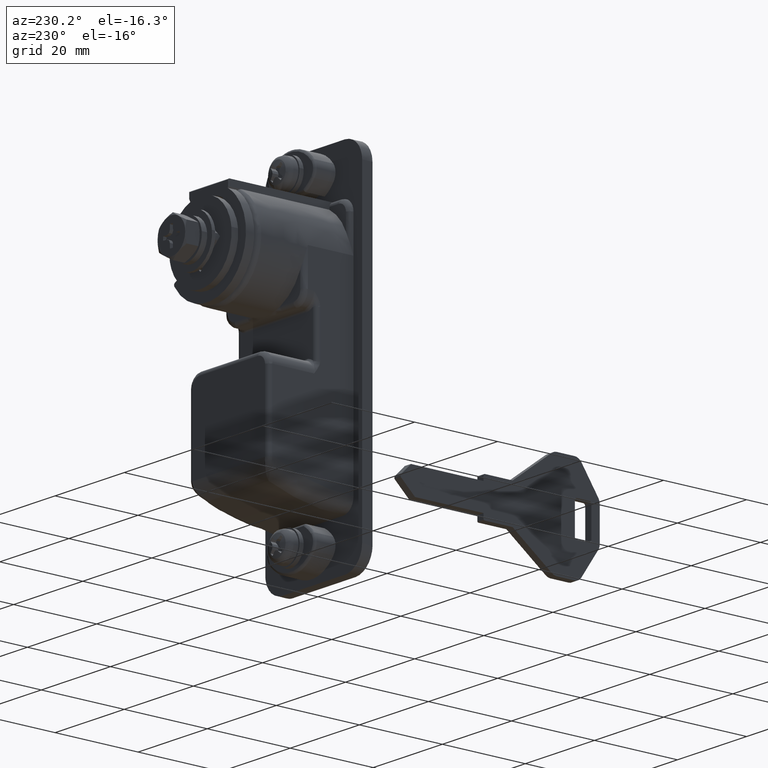
[diagram: clean part render]
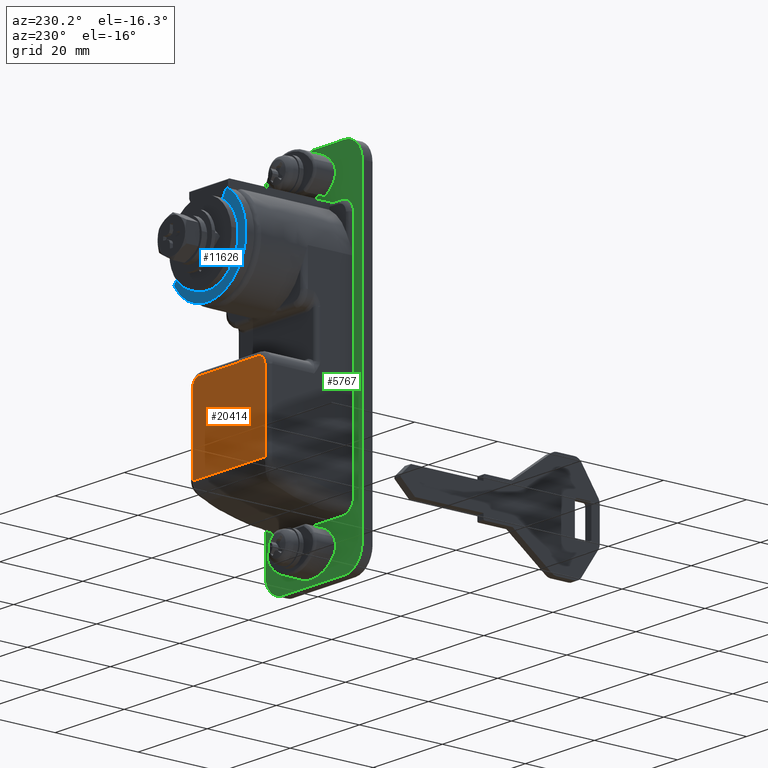
[diagram: same view with three faces highlighted in distinct colors, each labeled with its STEP entity id]
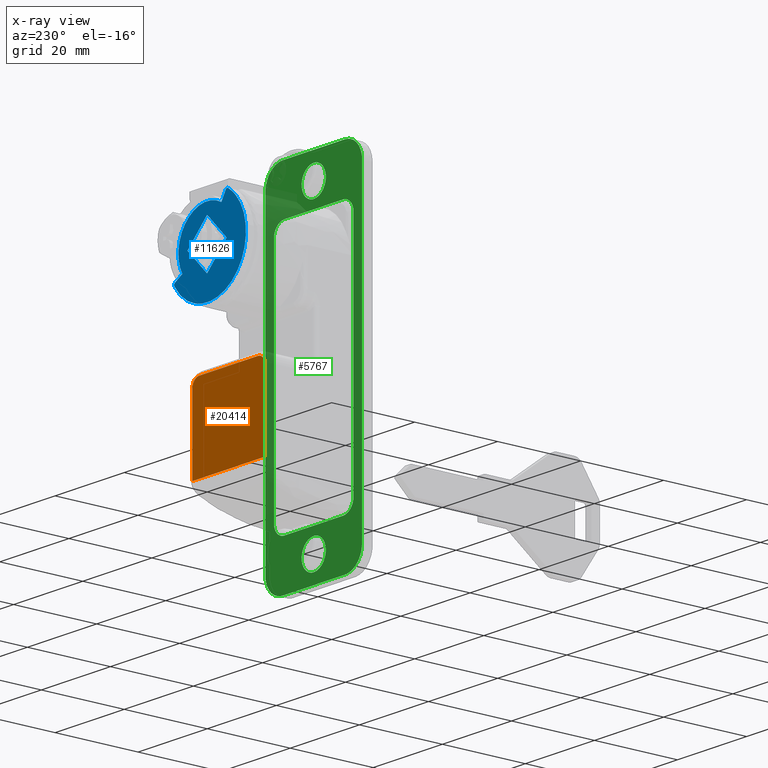
[diagram: x-ray of the same camera — body ghosted, the three highlighted faces saturated]
A machine part, auxiliary view with three faces highlighted in distinct colors.
The next image is the same camera in x-ray (body ghosted, the three faces saturated) — at least one of them is partly hidden behind the body in this view.
Their STEP definitions:

[orange] entity #20414 — the highlighted face is a freeform B-spline surface patch.
#18123=CARTESIAN_POINT('',(21.500000000000000,10.492613913856280,-42.402830094228413));
#18124=VERTEX_POINT('',#18123);
#18149=CARTESIAN_POINT('',(21.500000000000000,10.500000000000000,-42.213741838410847));
#18150=VERTEX_POINT('',#18149);
#18164=CARTESIAN_POINT('',(21.500000000000000,10.492613913856280,-42.402830094228413));
#18165=CARTESIAN_POINT('',(21.500000000000000,10.497541484559401,-42.339896983589639));
#18166=CARTESIAN_POINT('',(21.500000000000000,10.500000000000000,-42.276867427749757));
#18167=CARTESIAN_POINT('',(21.500000000000000,10.500000000000000,-42.213741838410847));
#18168=QUASI_UNIFORM_CURVE('',3,(#18164,#18165,#18166,#18167),.UNSPECIFIED.,.F.,.U.);
#18169=EDGE_CURVE('',#18124,#18150,#18168,.T.);
#18310=CARTESIAN_POINT('',(21.500000000000000,-10.492613913856280,-42.402830094228413));
#18311=VERTEX_POINT('',#18310);
#18351=CARTESIAN_POINT('',(21.500000000000000,-10.492613913856280,-42.402830094228413));
#18352=CARTESIAN_POINT('',(21.500000000000000,10.492613913856280,-42.402830094228413));
#18353=QUASI_UNIFORM_CURVE('',1,(#18351,#18352),.UNSPECIFIED.,.F.,.U.);
#18354=EDGE_CURVE('',#18311,#18124,#18353,.T.);
#18485=CARTESIAN_POINT('',(21.500000000000000,-10.500000000000000,-42.213741838410847));
#18486=VERTEX_POINT('',#18485);
#18508=CARTESIAN_POINT('',(21.500000000000000,-10.500000000000000,-42.213741838410847));
#18509=CARTESIAN_POINT('',(21.500000000000000,-10.500000000000000,-42.276867427749757));
#18510=CARTESIAN_POINT('',(21.500000000000000,-10.497541484559401,-42.339896983589639));
#18511=CARTESIAN_POINT('',(21.500000000000000,-10.492613913856280,-42.402830094228413));
#18512=QUASI_UNIFORM_CURVE('',3,(#18508,#18509,#18510,#18511),.UNSPECIFIED.,.F.,.U.);
#18513=EDGE_CURVE('',#18486,#18311,#18512,.T.);
#18540=CARTESIAN_POINT('',(21.500000000000000,-10.500000000000000,-24.500000000000000));
#18541=VERTEX_POINT('',#18540);
#18542=CARTESIAN_POINT('',(21.500000000000000,-10.500000000000000,-24.500000000000000));
#18543=CARTESIAN_POINT('',(21.500000000000000,-10.500000000000000,-42.213741838410847));
#18544=QUASI_UNIFORM_CURVE('',1,(#18542,#18543),.UNSPECIFIED.,.F.,.U.);
#18545=EDGE_CURVE('',#18541,#18486,#18544,.T.);
#18580=CARTESIAN_POINT('',(21.500000000000000,-8.500000000000000,-22.500000000000000));
#18581=VERTEX_POINT('',#18580);
#18611=CARTESIAN_POINT('',(21.500000000000000,-8.500000000000000,-22.500000000000000));
#18612=CARTESIAN_POINT('',(21.499999999999996,-10.500000000000002,-22.500000000000000));
#18613=CARTESIAN_POINT('',(21.500000000000000,-10.500000000000000,-24.500000000000000));
#18621=(BOUNDED_CURVE()B_SPLINE_CURVE(2,(#18611,#18612,#18613),.UNSPECIFIED.,.F.,.U.)CURVE()GEOMETRIC_REPRESENTATION_ITEM()QUASI_UNIFORM_CURVE()RATIONAL_B_SPLINE_CURVE((1.0,0.707106781186548,1.0))REPRESENTATION_ITEM(''));
#18622=EDGE_CURVE('',#18581,#18541,#18621,.T.);
#18641=CARTESIAN_POINT('',(21.500000000000000,8.500000000000000,-22.500000000000000));
#18642=VERTEX_POINT('',#18641);
#18664=CARTESIAN_POINT('',(21.500000000000000,8.500000000000000,-22.500000000000000));
#18665=CARTESIAN_POINT('',(21.500000000000000,-8.500000000000000,-22.500000000000000));
#18666=QUASI_UNIFORM_CURVE('',1,(#18664,#18665),.UNSPECIFIED.,.F.,.U.);
#18667=EDGE_CURVE('',#18642,#18581,#18666,.T.);
#18689=CARTESIAN_POINT('',(21.500000000000000,10.500000000000000,-24.500000000000000));
#18690=VERTEX_POINT('',#18689);
#18720=CARTESIAN_POINT('',(21.500000000000000,10.500000000000000,-24.500000000000000));
#18721=CARTESIAN_POINT('',(21.499999999999996,10.500000000000002,-22.500000000000000));
#18722=CARTESIAN_POINT('',(21.500000000000000,8.500000000000000,-22.500000000000000));
#18730=(BOUNDED_CURVE()B_SPLINE_CURVE(2,(#18720,#18721,#18722),.UNSPECIFIED.,.F.,.U.)CURVE()GEOMETRIC_REPRESENTATION_ITEM()QUASI_UNIFORM_CURVE()RATIONAL_B_SPLINE_CURVE((1.0,0.707106781186548,1.0))REPRESENTATION_ITEM(''));
#18731=EDGE_CURVE('',#18690,#18642,#18730,.T.);
#18750=CARTESIAN_POINT('',(21.500000000000000,10.500000000000000,-42.213741838410847));
#18751=CARTESIAN_POINT('',(21.500000000000000,10.500000000000000,-24.500000000000000));
#18752=QUASI_UNIFORM_CURVE('',1,(#18750,#18751),.UNSPECIFIED.,.F.,.U.);
#18753=EDGE_CURVE('',#18150,#18690,#18752,.T.);
#20399=CARTESIAN_POINT('',(21.500000000000000,-11.548949959297930,-43.396974550524277));
#20400=CARTESIAN_POINT('',(21.500000000000000,-11.548949959297930,-21.505853230416950));
#20401=CARTESIAN_POINT('',(21.500000000000000,11.548950522561819,-43.396974550524277));
#20402=CARTESIAN_POINT('',(21.500000000000000,11.548950522561819,-21.505853230416950));
#20403=B_SPLINE_SURFACE_WITH_KNOTS('',1,1,((#20399,#20401),(#20400,#20402)),.UNSPECIFIED.,.F.,.F.,.U.,(2,2),(2,2),(0.0,21.891121320107331),(0.0,23.097900481859750),.UNSPECIFIED.);
#20404=ORIENTED_EDGE('',*,*,#18354,.T.);
#20405=ORIENTED_EDGE('',*,*,#18169,.T.);
#20406=ORIENTED_EDGE('',*,*,#18753,.T.);
#20407=ORIENTED_EDGE('',*,*,#18731,.T.);
#20408=ORIENTED_EDGE('',*,*,#18667,.T.);
#20409=ORIENTED_EDGE('',*,*,#18622,.T.);
#20410=ORIENTED_EDGE('',*,*,#18545,.T.);
#20411=ORIENTED_EDGE('',*,*,#18513,.T.);
#20412=EDGE_LOOP('',(#20404,#20405,#20406,#20407,#20408,#20409,#20410,#20411));
#20413=FACE_OUTER_BOUND('',#20412,.T.);
#20414=ADVANCED_FACE('',(#20413),#20403,.F.);

[blue] entity #11626 — the highlighted face is a freeform B-spline surface patch.
#11505=CARTESIAN_POINT('',(26.699999999999999,-10.587854835155801,10.587854749242540));
#11506=CARTESIAN_POINT('',(26.699999999999999,12.275278806585010,10.587854749242540));
#11507=CARTESIAN_POINT('',(26.699999999999999,-10.587854835155801,-12.275278827891940));
#11508=CARTESIAN_POINT('',(26.699999999999999,12.275278806585010,-12.275278827891940));
#11509=B_SPLINE_SURFACE_WITH_KNOTS('',1,1,((#11505,#11507),(#11506,#11508)),.UNSPECIFIED.,.F.,.F.,.U.,(2,2),(2,2),(0.0,22.863133641740799),(0.0,22.863133577134480),.UNSPECIFIED.);
#11510=CARTESIAN_POINT('',(26.699999999999999,-9.470613810876641,-6.072065056077110));
#11511=VERTEX_POINT('',#11510);
#11512=CARTESIAN_POINT('',(26.699999999999999,6.072065158286350,9.470613745345391));
#11513=VERTEX_POINT('',#11512);
#11514=CARTESIAN_POINT('',(26.699999999999999,-9.470613810876634,-6.072065056077113));
#11515=CARTESIAN_POINT('',(26.700000000000003,-5.357758705824767,-12.486894607525198));
#11516=CARTESIAN_POINT('',(26.699999999999999,2.125130863780671,-11.047457572301729));
#11517=CARTESIAN_POINT('',(26.700000000000003,9.608020433386111,-9.608020537078268));
#11518=CARTESIAN_POINT('',(26.699999999999999,11.047457549366790,-2.125130983007596));
#11519=CARTESIAN_POINT('',(26.700000000000003,12.486894665347464,5.357758571063070));
#11520=CARTESIAN_POINT('',(26.699999999999999,6.072065158286353,9.470613745345384));
#11528=(BOUNDED_CURVE()B_SPLINE_CURVE(2,(#11514,#11515,#11516,#11517,#11518,#11519,#11520),.UNSPECIFIED.,.F.,.U.)B_SPLINE_CURVE_WITH_KNOTS((3,2,2,3),(0.0,0.333333333333333,0.666666666666667,1.0),.UNSPECIFIED.)CURVE()GEOMETRIC_REPRESENTATION_ITEM()RATIONAL_B_SPLINE_CURVE((1.0,0.827949034931353,1.0,0.827949034931353,1.0,0.827949034931353,1.0))REPRESENTATION_ITEM(''));
#11529=EDGE_CURVE('',#11511,#11513,#11528,.T.);
#11530=ORIENTED_EDGE('',*,*,#11529,.T.);
#11531=CARTESIAN_POINT('',(26.699999999999999,5.369182919276700,9.299697623006239));
#11532=VERTEX_POINT('',#11531);
#11533=CARTESIAN_POINT('',(26.699999999999999,6.072065158286348,9.470613745345389));
#11534=CARTESIAN_POINT('',(26.700000000000006,5.891951767942756,9.586093087176177));
#11535=CARTESIAN_POINT('',(26.699999999999999,5.684055851679326,9.535540146888549));
#11536=CARTESIAN_POINT('',(26.700000000000006,5.476159935415896,9.484987206600920));
#11537=CARTESIAN_POINT('',(26.699999999999999,5.369182919276701,9.299697623006237));
#11545=(BOUNDED_CURVE()B_SPLINE_CURVE(2,(#11533,#11534,#11535,#11536,#11537),.UNSPECIFIED.,.F.,.U.)B_SPLINE_CURVE_WITH_KNOTS((3,2,3),(0.0,0.500000000000000,1.0),.UNSPECIFIED.)CURVE()GEOMETRIC_REPRESENTATION_ITEM()RATIONAL_B_SPLINE_CURVE((1.0,0.919365727210338,1.0,0.919365727210338,1.0))REPRESENTATION_ITEM(''));
#11546=EDGE_CURVE('',#11513,#11532,#11545,.T.);
#11547=ORIENTED_EDGE('',*,*,#11546,.T.);
#11548=CARTESIAN_POINT('',(26.699999999999999,4.149999959585565,7.188011290000210));
#11549=VERTEX_POINT('',#11548);
#11550=CARTESIAN_POINT('',(26.699999999999999,5.369182919276700,9.299697623006239));
#11551=CARTESIAN_POINT('',(26.699999999999999,4.149999959585565,7.188011290000210));
#11552=QUASI_UNIFORM_CURVE('',1,(#11550,#11551),.UNSPECIFIED.,.F.,.U.);
#11553=EDGE_CURVE('',#11532,#11549,#11552,.T.);
#11554=ORIENTED_EDGE('',*,*,#11553,.T.);
#11555=CARTESIAN_POINT('',(26.699999999999999,-7.188011266666870,-4.150000000000100));
#11556=VERTEX_POINT('',#11555);
#11557=CARTESIAN_POINT('',(26.699999999999999,4.149999959585568,7.188011290000206));
#11558=CARTESIAN_POINT('',(26.700000000000003,-1.365554934235421,10.372418167364529));
#11559=CARTESIAN_POINT('',(26.699999999999999,-5.868986554638886,5.868986521640566));
#11560=CARTESIAN_POINT('',(26.700000000000003,-10.372418175042347,1.365554875916600));
#11561=CARTESIAN_POINT('',(26.699999999999999,-7.188011266666871,-4.150000000000091));
#11569=(BOUNDED_CURVE()B_SPLINE_CURVE(2,(#11557,#11558,#11559,#11560,#11561),.UNSPECIFIED.,.F.,.U.)B_SPLINE_CURVE_WITH_KNOTS((3,2,3),(0.0,0.500000000000000,1.0),.UNSPECIFIED.)CURVE()GEOMETRIC_REPRESENTATION_ITEM()RATIONAL_B_SPLINE_CURVE((1.0,0.793353348761133,1.0,0.793353348761133,1.0))REPRESENTATION_ITEM(''));
#11570=EDGE_CURVE('',#11549,#11556,#11569,.T.);
#11571=ORIENTED_EDGE('',*,*,#11570,.T.);
#11572=CARTESIAN_POINT('',(26.699999999999999,-9.299697656757450,-5.369182804943411));
#11573=VERTEX_POINT('',#11572);
#11574=CARTESIAN_POINT('',(26.699999999999999,-7.188011266666870,-4.150000000000100));
#11575=CARTESIAN_POINT('',(26.699999999999999,-9.299697656757450,-5.369182804943411));
#11576=QUASI_UNIFORM_CURVE('',1,(#11574,#11575),.UNSPECIFIED.,.F.,.U.);
#11577=EDGE_CURVE('',#11556,#11573,#11576,.T.);
#11578=ORIENTED_EDGE('',*,*,#11577,.T.);
#11579=CARTESIAN_POINT('',(26.699999999999999,-9.299697656757452,-5.369182804943409));
#11580=CARTESIAN_POINT('',(26.699999999999996,-9.484987254640057,-5.476159812861540));
#11581=CARTESIAN_POINT('',(26.699999999999999,-9.535540204931808,-5.684055735196283));
#11582=CARTESIAN_POINT('',(26.699999999999996,-9.586093155223557,-5.891951657531028));
#11583=CARTESIAN_POINT('',(26.699999999999999,-9.470613810876637,-6.072065056077108));
#11591=(BOUNDED_CURVE()B_SPLINE_CURVE(2,(#11579,#11580,#11581,#11582,#11583),.UNSPECIFIED.,.F.,.U.)B_SPLINE_CURVE_WITH_KNOTS((3,2,3),(0.0,0.500000000000000,1.0),.UNSPECIFIED.)CURVE()GEOMETRIC_REPRESENTATION_ITEM()RATIONAL_B_SPLINE_CURVE((1.0,0.919365721715028,1.0,0.919365721715028,1.0))REPRESENTATION_ITEM(''));
#11592=EDGE_CURVE('',#11573,#11511,#11591,.T.);
#11593=ORIENTED_EDGE('',*,*,#11592,.T.);
#11594=EDGE_LOOP('',(#11530,#11547,#11554,#11571,#11578,#11593));
#11595=FACE_OUTER_BOUND('',#11594,.T.);
#11596=CARTESIAN_POINT('',(26.699999999999999,-4.440892E-016,-5.656854249492380));
#11597=VERTEX_POINT('',#11596);
#11598=CARTESIAN_POINT('',(26.699999999999999,-5.656854249492380,4.440892E-016));
#11599=VERTEX_POINT('',#11598);
#11600=CARTESIAN_POINT('',(26.699999999999999,-4.440892E-016,-5.656854249492380));
#11601=CARTESIAN_POINT('',(26.699999999999999,-5.656854249492380,4.440892E-016));
#11602=QUASI_UNIFORM_CURVE('',1,(#11600,#11601),.UNSPECIFIED.,.F.,.U.);
#11603=EDGE_CURVE('',#11597,#11599,#11602,.T.);
#11604=ORIENTED_EDGE('',*,*,#11603,.T.);
#11605=CARTESIAN_POINT('',(26.699999999999999,0.0,5.656854249492380));
#11606=VERTEX_POINT('',#11605);
#11607=CARTESIAN_POINT('',(26.699999999999999,-5.656854249492380,4.440892E-016));
#11608=CARTESIAN_POINT('',(26.699999999999999,0.0,5.656854249492380));
#11609=QUASI_UNIFORM_CURVE('',1,(#11607,#11608),.UNSPECIFIED.,.F.,.U.);
#11610=EDGE_CURVE('',#11599,#11606,#11609,.T.);
#11611=ORIENTED_EDGE('',*,*,#11610,.T.);
#11612=CARTESIAN_POINT('',(26.699999999999999,5.656854249492380,-4.440892E-016));
#11613=VERTEX_POINT('',#11612);
#11614=CARTESIAN_POINT('',(26.699999999999999,0.0,5.656854249492380));
#11615=CARTESIAN_POINT('',(26.699999999999999,5.656854249492380,-4.440892E-016));
#11616=QUASI_UNIFORM_CURVE('',1,(#11614,#11615),.UNSPECIFIED.,.F.,.U.);
#11617=EDGE_CURVE('',#11606,#11613,#11616,.T.);
#11618=ORIENTED_EDGE('',*,*,#11617,.T.);
#11619=CARTESIAN_POINT('',(26.699999999999999,5.656854249492380,-4.440892E-016));
#11620=CARTESIAN_POINT('',(26.699999999999999,-4.440892E-016,-5.656854249492380));
#11621=QUASI_UNIFORM_CURVE('',1,(#11619,#11620),.UNSPECIFIED.,.F.,.U.);
#11622=EDGE_CURVE('',#11613,#11597,#11621,.T.);
#11623=ORIENTED_EDGE('',*,*,#11622,.T.);
#11624=EDGE_LOOP('',(#11604,#11611,#11618,#11623));
#11625=FACE_BOUND('',#11624,.T.);
#11626=ADVANCED_FACE('',(#11595,#11625),#11509,.F.);

[green] entity #5767 — the highlighted face is a freeform B-spline surface patch.
#4732=CARTESIAN_POINT('',(1.000000000000222,3.489210668036402,16.725393164577142));
#4733=VERTEX_POINT('',#4732);
#4739=CARTESIAN_POINT('',(1.000000000000222,0.0,20.500000000000000));
#4740=VERTEX_POINT('',#4739);
#4741=CARTESIAN_POINT('',(1.000000000000222,3.489210668036402,16.725393164577135));
#4742=CARTESIAN_POINT('',(1.000000000000222,3.500000000000000,16.862484625096005));
#4743=CARTESIAN_POINT('',(1.000000000000222,3.500000000000000,17.0));
#4744=CARTESIAN_POINT('',(1.000000000000222,3.500000000000000,20.499999999999996));
#4745=CARTESIAN_POINT('',(1.000000000000222,0.0,20.500000000000000));
#4753=(BOUNDED_CURVE()B_SPLINE_CURVE(2,(#4741,#4742,#4743,#4744,#4745),.UNSPECIFIED.,.F.,.U.)B_SPLINE_CURVE_WITH_KNOTS((3,2,3),(0.736331300595880,0.750000000000000,1.0),.UNSPECIFIED.)CURVE()GEOMETRIC_REPRESENTATION_ITEM()RATIONAL_B_SPLINE_CURVE((0.969723356094835,0.983986122538135,1.0,0.707106781186547,1.0))REPRESENTATION_ITEM(''));
#4754=EDGE_CURVE('',#4733,#4740,#4753,.T.);
#4756=CARTESIAN_POINT('',(1.000000000000222,-3.489210668036402,17.274606835422869));
#4757=VERTEX_POINT('',#4756);
#4758=CARTESIAN_POINT('',(1.000000000000222,0.0,20.500000000000000));
#4759=CARTESIAN_POINT('',(1.000000000000222,-3.235366720105382,20.499999999999996));
#4760=CARTESIAN_POINT('',(1.000000000000222,-3.489210668036402,17.274606835422865));
#4768=(BOUNDED_CURVE()B_SPLINE_CURVE(2,(#4758,#4759,#4760),.UNSPECIFIED.,.F.,.U.)B_SPLINE_CURVE_WITH_KNOTS((3,3),(0.0,0.236331300595880),.UNSPECIFIED.)CURVE()GEOMETRIC_REPRESENTATION_ITEM()RATIONAL_B_SPLINE_CURVE((1.0,0.723120658648413,0.969723356094835))REPRESENTATION_ITEM(''));
#4769=EDGE_CURVE('',#4740,#4757,#4768,.T.);
#4815=CARTESIAN_POINT('',(1.000000000000222,0.0,13.500000000000000));
#4816=VERTEX_POINT('',#4815);
#4817=CARTESIAN_POINT('',(1.000000000000222,-3.489210668036402,17.274606835422865));
#4818=CARTESIAN_POINT('',(1.000000000000222,-3.500000000000001,17.137515374903998));
#4819=CARTESIAN_POINT('',(1.000000000000222,-3.500000000000000,17.0));
#4820=CARTESIAN_POINT('',(1.000000000000222,-3.500000000000000,13.500000000000002));
#4821=CARTESIAN_POINT('',(1.000000000000222,0.0,13.500000000000000));
#4829=(BOUNDED_CURVE()B_SPLINE_CURVE(2,(#4817,#4818,#4819,#4820,#4821),.UNSPECIFIED.,.F.,.U.)B_SPLINE_CURVE_WITH_KNOTS((3,2,3),(0.236331300595880,0.250000000000000,0.500000000000000),.UNSPECIFIED.)CURVE()GEOMETRIC_REPRESENTATION_ITEM()RATIONAL_B_SPLINE_CURVE((0.969723356094835,0.983986122538135,1.0,0.707106781186547,1.0))REPRESENTATION_ITEM(''));
#4830=EDGE_CURVE('',#4757,#4816,#4829,.T.);
#4832=CARTESIAN_POINT('',(1.000000000000222,0.0,13.500000000000000));
#4833=CARTESIAN_POINT('',(1.000000000000222,3.235366720105390,13.500000000000004));
#4834=CARTESIAN_POINT('',(1.000000000000222,3.489210668036402,16.725393164577138));
#4842=(BOUNDED_CURVE()B_SPLINE_CURVE(2,(#4832,#4833,#4834),.UNSPECIFIED.,.F.,.U.)B_SPLINE_CURVE_WITH_KNOTS((3,3),(0.500000000000000,0.736331300595880),.UNSPECIFIED.)CURVE()GEOMETRIC_REPRESENTATION_ITEM()RATIONAL_B_SPLINE_CURVE((1.0,0.723120658648412,0.969723356094835))REPRESENTATION_ITEM(''));
#4843=EDGE_CURVE('',#4816,#4733,#4842,.T.);
#4914=CARTESIAN_POINT('',(1.000000000000222,3.489210668036403,-55.274606835422858));
#4915=VERTEX_POINT('',#4914);
#4921=CARTESIAN_POINT('',(1.000000000000222,0.0,-51.500000000000000));
#4922=VERTEX_POINT('',#4921);
#4923=CARTESIAN_POINT('',(1.000000000000222,3.489210668036403,-55.274606835422858));
#4924=CARTESIAN_POINT('',(1.000000000000222,3.500000000000000,-55.137515374903991));
#4925=CARTESIAN_POINT('',(1.000000000000222,3.500000000000000,-55.0));
#4926=CARTESIAN_POINT('',(1.000000000000222,3.500000000000000,-51.500000000000000));
#4927=CARTESIAN_POINT('',(1.000000000000222,0.0,-51.500000000000000));
#4935=(BOUNDED_CURVE()B_SPLINE_CURVE(2,(#4923,#4924,#4925,#4926,#4927),.UNSPECIFIED.,.F.,.U.)B_SPLINE_CURVE_WITH_KNOTS((3,2,3),(0.736331300595880,0.750000000000000,1.0),.UNSPECIFIED.)CURVE()GEOMETRIC_REPRESENTATION_ITEM()RATIONAL_B_SPLINE_CURVE((0.969723356094835,0.983986122538135,1.0,0.707106781186547,1.0))REPRESENTATION_ITEM(''));
#4936=EDGE_CURVE('',#4915,#4922,#4935,.T.);
#4938=CARTESIAN_POINT('',(1.000000000000222,-3.489210668036402,-54.725393164577142));
#4939=VERTEX_POINT('',#4938);
#4940=CARTESIAN_POINT('',(1.000000000000222,0.0,-51.500000000000000));
#4941=CARTESIAN_POINT('',(1.000000000000222,-3.235366720105388,-51.500000000000000));
#4942=CARTESIAN_POINT('',(1.000000000000222,-3.489210668036402,-54.725393164577135));
#4950=(BOUNDED_CURVE()B_SPLINE_CURVE(2,(#4940,#4941,#4942),.UNSPECIFIED.,.F.,.U.)B_SPLINE_CURVE_WITH_KNOTS((3,3),(0.0,0.236331300595880),.UNSPECIFIED.)CURVE()GEOMETRIC_REPRESENTATION_ITEM()RATIONAL_B_SPLINE_CURVE((1.0,0.723120658648412,0.969723356094835))REPRESENTATION_ITEM(''));
#4951=EDGE_CURVE('',#4922,#4939,#4950,.T.);
#4997=CARTESIAN_POINT('',(1.000000000000222,0.0,-58.500000000000000));
#4998=VERTEX_POINT('',#4997);
#4999=CARTESIAN_POINT('',(1.000000000000222,-3.489210668036402,-54.725393164577142));
#5000=CARTESIAN_POINT('',(1.000000000000222,-3.500000000000000,-54.862484625096009));
#5001=CARTESIAN_POINT('',(1.000000000000222,-3.500000000000000,-55.0));
#5002=CARTESIAN_POINT('',(1.000000000000222,-3.500000000000000,-58.499999999999993));
#5003=CARTESIAN_POINT('',(1.000000000000222,0.0,-58.500000000000000));
#5011=(BOUNDED_CURVE()B_SPLINE_CURVE(2,(#4999,#5000,#5001,#5002,#5003),.UNSPECIFIED.,.F.,.U.)B_SPLINE_CURVE_WITH_KNOTS((3,2,3),(0.236331300595880,0.250000000000000,0.500000000000000),.UNSPECIFIED.)CURVE()GEOMETRIC_REPRESENTATION_ITEM()RATIONAL_B_SPLINE_CURVE((0.969723356094835,0.983986122538135,1.0,0.707106781186547,1.0))REPRESENTATION_ITEM(''));
#5012=EDGE_CURVE('',#4939,#4998,#5011,.T.);
#5014=CARTESIAN_POINT('',(1.000000000000222,0.0,-58.500000000000000));
#5015=CARTESIAN_POINT('',(1.000000000000222,3.235366720105390,-58.499999999999993));
#5016=CARTESIAN_POINT('',(1.000000000000222,3.489210668036403,-55.274606835422865));
#5024=(BOUNDED_CURVE()B_SPLINE_CURVE(2,(#5014,#5015,#5016),.UNSPECIFIED.,.F.,.U.)B_SPLINE_CURVE_WITH_KNOTS((3,3),(0.500000000000000,0.736331300595880),.UNSPECIFIED.)CURVE()GEOMETRIC_REPRESENTATION_ITEM()RATIONAL_B_SPLINE_CURVE((1.0,0.723120658648412,0.969723356094835))REPRESENTATION_ITEM(''));
#5025=EDGE_CURVE('',#4998,#4915,#5024,.T.);
#5075=CARTESIAN_POINT('',(1.000000000000222,11.500000000000000,8.500000000000000));
#5076=VERTEX_POINT('',#5075);
#5082=CARTESIAN_POINT('',(1.000000000000222,8.500000000000000,11.500000000000000));
#5083=VERTEX_POINT('',#5082);
#5084=CARTESIAN_POINT('',(1.000000000000222,11.500000000000000,8.500000000000000));
#5085=CARTESIAN_POINT('',(1.000000000000222,11.500000000000000,11.500000000000000));
#5086=CARTESIAN_POINT('',(1.000000000000222,8.500000000000000,11.500000000000000));
#5094=(BOUNDED_CURVE()B_SPLINE_CURVE(2,(#5084,#5085,#5086),.UNSPECIFIED.,.F.,.U.)CURVE()GEOMETRIC_REPRESENTATION_ITEM()QUASI_UNIFORM_CURVE()RATIONAL_B_SPLINE_CURVE((1.0,0.707106781186548,1.0))REPRESENTATION_ITEM(''));
#5095=EDGE_CURVE('',#5076,#5083,#5094,.T.);
#5117=CARTESIAN_POINT('',(1.000000000000222,11.500000000000000,-46.500000000000000));
#5118=VERTEX_POINT('',#5117);
#5124=CARTESIAN_POINT('',(1.000000000000222,11.500000000000000,-46.500000000000000));
#5125=CARTESIAN_POINT('',(1.000000000000222,11.500000000000000,8.500000000000000));
#5126=QUASI_UNIFORM_CURVE('',1,(#5124,#5125),.UNSPECIFIED.,.F.,.U.);
#5127=EDGE_CURVE('',#5118,#5076,#5126,.T.);
#5162=CARTESIAN_POINT('',(1.000000000000222,8.500000000000000,-49.500000000000000));
#5163=VERTEX_POINT('',#5162);
#5169=CARTESIAN_POINT('',(1.000000000000222,8.500000000000000,-49.500000000000000));
#5170=CARTESIAN_POINT('',(1.000000000000222,11.500000000000000,-49.499999999999993));
#5171=CARTESIAN_POINT('',(1.000000000000222,11.500000000000000,-46.500000000000000));
#5179=(BOUNDED_CURVE()B_SPLINE_CURVE(2,(#5169,#5170,#5171),.UNSPECIFIED.,.F.,.U.)CURVE()GEOMETRIC_REPRESENTATION_ITEM()QUASI_UNIFORM_CURVE()RATIONAL_B_SPLINE_CURVE((1.0,0.707106781186548,1.0))REPRESENTATION_ITEM(''));
#5180=EDGE_CURVE('',#5163,#5118,#5179,.T.);
#5198=CARTESIAN_POINT('',(1.000000000000222,-8.500000000000000,-49.500000000000000));
#5199=VERTEX_POINT('',#5198);
#5205=CARTESIAN_POINT('',(1.000000000000222,-8.500000000000000,-49.500000000000000));
#5206=CARTESIAN_POINT('',(1.000000000000222,8.500000000000000,-49.500000000000000));
#5207=QUASI_UNIFORM_CURVE('',1,(#5205,#5206),.UNSPECIFIED.,.F.,.U.);
#5208=EDGE_CURVE('',#5199,#5163,#5207,.T.);
#5243=CARTESIAN_POINT('',(1.000000000000222,-11.500000000000000,-46.500000000000000));
#5244=VERTEX_POINT('',#5243);
#5250=CARTESIAN_POINT('',(1.000000000000222,-11.500000000000000,-46.500000000000000));
#5251=CARTESIAN_POINT('',(1.000000000000222,-11.500000000000000,-49.499999999999993));
#5252=CARTESIAN_POINT('',(1.000000000000222,-8.500000000000000,-49.500000000000000));
#5260=(BOUNDED_CURVE()B_SPLINE_CURVE(2,(#5250,#5251,#5252),.UNSPECIFIED.,.F.,.U.)CURVE()GEOMETRIC_REPRESENTATION_ITEM()QUASI_UNIFORM_CURVE()RATIONAL_B_SPLINE_CURVE((1.0,0.707106781186548,1.0))REPRESENTATION_ITEM(''));
#5261=EDGE_CURVE('',#5244,#5199,#5260,.T.);
#5279=CARTESIAN_POINT('',(1.000000000000222,-11.500000000000000,8.500000000000000));
#5280=VERTEX_POINT('',#5279);
#5286=CARTESIAN_POINT('',(1.000000000000222,-11.500000000000000,8.500000000000000));
#5287=CARTESIAN_POINT('',(1.000000000000222,-11.500000000000000,-46.500000000000000));
#5288=QUASI_UNIFORM_CURVE('',1,(#5286,#5287),.UNSPECIFIED.,.F.,.U.);
#5289=EDGE_CURVE('',#5280,#5244,#5288,.T.);
#5324=CARTESIAN_POINT('',(1.000000000000222,-8.500000000000000,11.500000000000000));
#5325=VERTEX_POINT('',#5324);
#5331=CARTESIAN_POINT('',(1.000000000000222,-8.500000000000000,11.500000000000000));
#5332=CARTESIAN_POINT('',(1.000000000000222,-11.500000000000000,11.500000000000000));
#5333=CARTESIAN_POINT('',(1.000000000000222,-11.500000000000000,8.500000000000000));
#5341=(BOUNDED_CURVE()B_SPLINE_CURVE(2,(#5331,#5332,#5333),.UNSPECIFIED.,.F.,.U.)CURVE()GEOMETRIC_REPRESENTATION_ITEM()QUASI_UNIFORM_CURVE()RATIONAL_B_SPLINE_CURVE((1.0,0.707106781186548,1.0))REPRESENTATION_ITEM(''));
#5342=EDGE_CURVE('',#5325,#5280,#5341,.T.);
#5359=CARTESIAN_POINT('',(1.000000000000222,8.500000000000000,11.500000000000000));
#5360=CARTESIAN_POINT('',(1.000000000000222,-8.500000000000000,11.500000000000000));
#5361=QUASI_UNIFORM_CURVE('',1,(#5359,#5360),.UNSPECIFIED.,.F.,.U.);
#5362=EDGE_CURVE('',#5083,#5325,#5361,.T.);
#5399=CARTESIAN_POINT('',(1.000000000000222,-14.0,18.0));
#5400=VERTEX_POINT('',#5399);
#5406=CARTESIAN_POINT('',(1.000000000000222,-9.0,23.0));
#5407=VERTEX_POINT('',#5406);
#5408=CARTESIAN_POINT('',(1.000000000000222,-14.0,18.0));
#5409=CARTESIAN_POINT('',(1.000000000000222,-13.999999999999998,22.999999999999993));
#5410=CARTESIAN_POINT('',(1.000000000000222,-9.0,23.0));
#5418=(BOUNDED_CURVE()B_SPLINE_CURVE(2,(#5408,#5409,#5410),.UNSPECIFIED.,.F.,.U.)CURVE()GEOMETRIC_REPRESENTATION_ITEM()QUASI_UNIFORM_CURVE()RATIONAL_B_SPLINE_CURVE((1.0,0.707106781186548,1.0))REPRESENTATION_ITEM(''));
#5419=EDGE_CURVE('',#5400,#5407,#5418,.T.);
#5441=CARTESIAN_POINT('',(1.000000000000222,-14.0,-56.0));
#5442=VERTEX_POINT('',#5441);
#5448=CARTESIAN_POINT('',(1.000000000000222,-14.0,-56.0));
#5449=CARTESIAN_POINT('',(1.000000000000222,-14.0,18.0));
#5450=QUASI_UNIFORM_CURVE('',1,(#5448,#5449),.UNSPECIFIED.,.F.,.U.);
#5451=EDGE_CURVE('',#5442,#5400,#5450,.T.);
#5486=CARTESIAN_POINT('',(1.000000000000222,-9.0,-61.0));
#5487=VERTEX_POINT('',#5486);
#5493=CARTESIAN_POINT('',(1.000000000000222,-9.0,-61.0));
#5494=CARTESIAN_POINT('',(1.000000000000222,-13.999999999999998,-60.999999999999993));
#5495=CARTESIAN_POINT('',(1.000000000000222,-14.0,-56.0));
#5503=(BOUNDED_CURVE()B_SPLINE_CURVE(2,(#5493,#5494,#5495),.UNSPECIFIED.,.F.,.U.)CURVE()GEOMETRIC_REPRESENTATION_ITEM()QUASI_UNIFORM_CURVE()RATIONAL_B_SPLINE_CURVE((1.0,0.707106781186548,1.0))REPRESENTATION_ITEM(''));
#5504=EDGE_CURVE('',#5487,#5442,#5503,.T.);
#5522=CARTESIAN_POINT('',(1.000000000000222,9.0,-61.0));
#5523=VERTEX_POINT('',#5522);
#5529=CARTESIAN_POINT('',(1.000000000000222,9.0,-61.0));
#5530=CARTESIAN_POINT('',(1.000000000000222,-9.0,-61.0));
#5531=QUASI_UNIFORM_CURVE('',1,(#5529,#5530),.UNSPECIFIED.,.F.,.U.);
#5532=EDGE_CURVE('',#5523,#5487,#5531,.T.);
#5567=CARTESIAN_POINT('',(1.000000000000222,14.0,-56.0));
#5568=VERTEX_POINT('',#5567);
#5574=CARTESIAN_POINT('',(1.000000000000222,14.0,-56.0));
#5575=CARTESIAN_POINT('',(1.000000000000222,13.999999999999998,-60.999999999999993));
#5576=CARTESIAN_POINT('',(1.000000000000222,9.0,-61.0));
#5584=(BOUNDED_CURVE()B_SPLINE_CURVE(2,(#5574,#5575,#5576),.UNSPECIFIED.,.F.,.U.)CURVE()GEOMETRIC_REPRESENTATION_ITEM()QUASI_UNIFORM_CURVE()RATIONAL_B_SPLINE_CURVE((1.0,0.707106781186548,1.0))REPRESENTATION_ITEM(''));
#5585=EDGE_CURVE('',#5568,#5523,#5584,.T.);
#5603=CARTESIAN_POINT('',(1.000000000000222,14.0,18.0));
#5604=VERTEX_POINT('',#5603);
#5610=CARTESIAN_POINT('',(1.000000000000222,14.0,18.0));
#5611=CARTESIAN_POINT('',(1.000000000000222,14.0,-56.0));
#5612=QUASI_UNIFORM_CURVE('',1,(#5610,#5611),.UNSPECIFIED.,.F.,.U.);
#5613=EDGE_CURVE('',#5604,#5568,#5612,.T.);
#5648=CARTESIAN_POINT('',(1.000000000000222,9.0,23.0));
#5649=VERTEX_POINT('',#5648);
#5655=CARTESIAN_POINT('',(1.000000000000222,9.0,23.0));
#5656=CARTESIAN_POINT('',(1.000000000000222,13.999999999999998,22.999999999999993));
#5657=CARTESIAN_POINT('',(1.000000000000222,14.0,18.0));
#5665=(BOUNDED_CURVE()B_SPLINE_CURVE(2,(#5655,#5656,#5657),.UNSPECIFIED.,.F.,.U.)CURVE()GEOMETRIC_REPRESENTATION_ITEM()QUASI_UNIFORM_CURVE()RATIONAL_B_SPLINE_CURVE((1.0,0.707106781186548,1.0))REPRESENTATION_ITEM(''));
#5666=EDGE_CURVE('',#5649,#5604,#5665,.T.);
#5683=CARTESIAN_POINT('',(1.000000000000222,-9.0,23.0));
#5684=CARTESIAN_POINT('',(1.000000000000222,9.0,23.0));
#5685=QUASI_UNIFORM_CURVE('',1,(#5683,#5684),.UNSPECIFIED.,.F.,.U.);
#5686=EDGE_CURVE('',#5407,#5649,#5685,.T.);
#5730=CARTESIAN_POINT('',(1.000000000000200,15.398599945730570,27.195799837191700));
#5731=CARTESIAN_POINT('',(1.000000000000200,-15.398600696749090,27.195799837191700));
#5732=CARTESIAN_POINT('',(1.000000000000200,15.398599945730570,-65.195802090247284));
#5733=CARTESIAN_POINT('',(1.000000000000200,-15.398600696749090,-65.195802090247284));
#5734=B_SPLINE_SURFACE_WITH_KNOTS('',1,1,((#5730,#5732),(#5731,#5733)),.UNSPECIFIED.,.F.,.F.,.U.,(2,2),(2,2),(0.0,30.797200642479659),(0.0,92.391601927438984),.UNSPECIFIED.);
#5735=ORIENTED_EDGE('',*,*,#5686,.F.);
#5736=ORIENTED_EDGE('',*,*,#5419,.F.);
#5737=ORIENTED_EDGE('',*,*,#5451,.F.);
#5738=ORIENTED_EDGE('',*,*,#5504,.F.);
#5739=ORIENTED_EDGE('',*,*,#5532,.F.);
#5740=ORIENTED_EDGE('',*,*,#5585,.F.);
#5741=ORIENTED_EDGE('',*,*,#5613,.F.);
#5742=ORIENTED_EDGE('',*,*,#5666,.F.);
#5743=EDGE_LOOP('',(#5735,#5736,#5737,#5738,#5739,#5740,#5741,#5742));
#5744=FACE_OUTER_BOUND('',#5743,.T.);
#5745=ORIENTED_EDGE('',*,*,#5362,.F.);
#5746=ORIENTED_EDGE('',*,*,#5095,.F.);
#5747=ORIENTED_EDGE('',*,*,#5127,.F.);
#5748=ORIENTED_EDGE('',*,*,#5180,.F.);
#5749=ORIENTED_EDGE('',*,*,#5208,.F.);
#5750=ORIENTED_EDGE('',*,*,#5261,.F.);
#5751=ORIENTED_EDGE('',*,*,#5289,.F.);
#5752=ORIENTED_EDGE('',*,*,#5342,.F.);
#5753=EDGE_LOOP('',(#5745,#5746,#5747,#5748,#5749,#5750,#5751,#5752));
#5754=FACE_BOUND('',#5753,.T.);
#5755=ORIENTED_EDGE('',*,*,#5025,.F.);
#5756=ORIENTED_EDGE('',*,*,#5012,.F.);
#5757=ORIENTED_EDGE('',*,*,#4951,.F.);
#5758=ORIENTED_EDGE('',*,*,#4936,.F.);
#5759=EDGE_LOOP('',(#5755,#5756,#5757,#5758));
#5760=FACE_BOUND('',#5759,.T.);
#5761=ORIENTED_EDGE('',*,*,#4843,.F.);
#5762=ORIENTED_EDGE('',*,*,#4830,.F.);
#5763=ORIENTED_EDGE('',*,*,#4769,.F.);
#5764=ORIENTED_EDGE('',*,*,#4754,.F.);
#5765=EDGE_LOOP('',(#5761,#5762,#5763,#5764));
#5766=FACE_BOUND('',#5765,.T.);
#5767=ADVANCED_FACE('',(#5744,#5754,#5760,#5766),#5734,.T.);